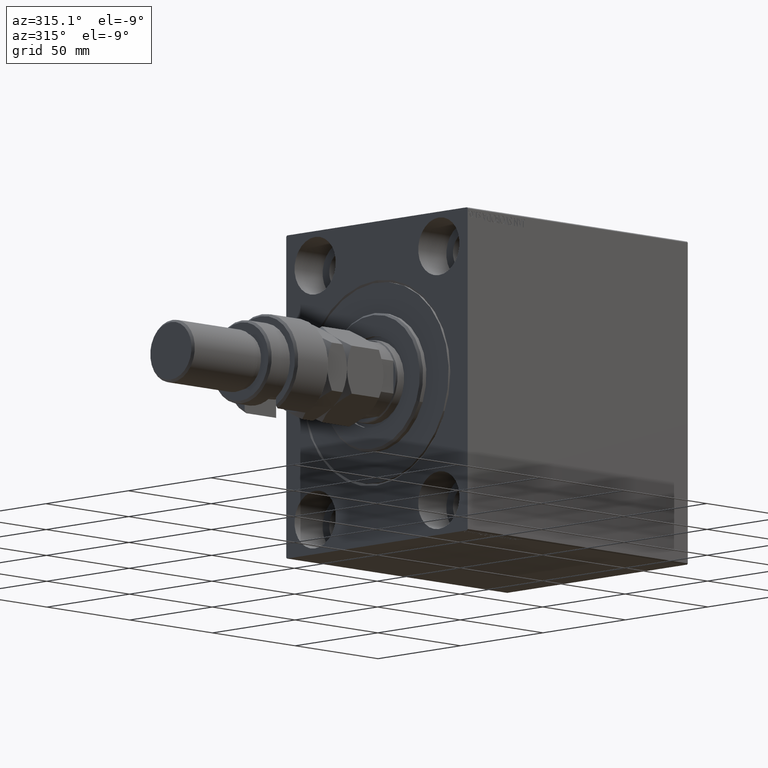
[diagram: clean part render]
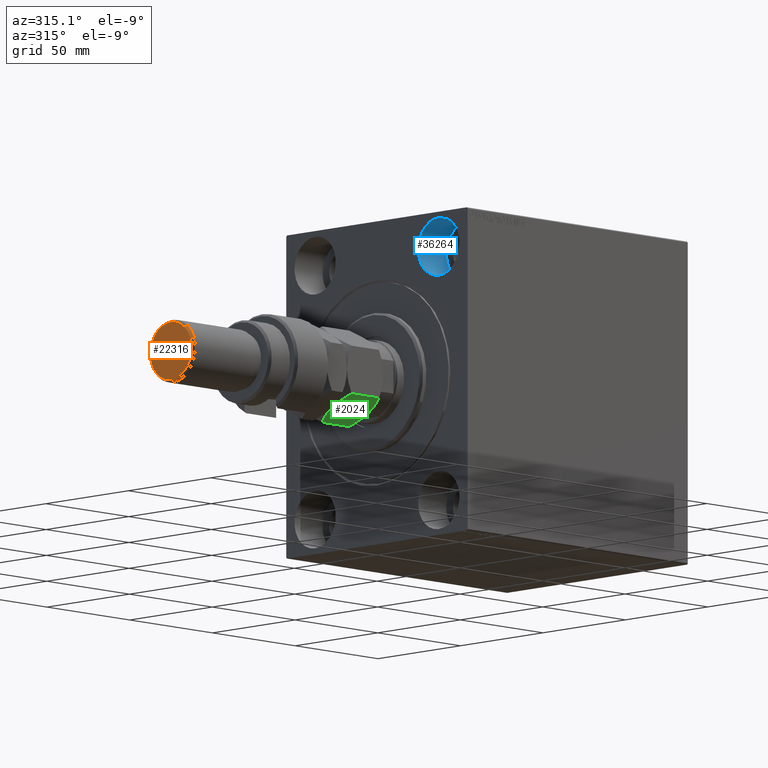
[diagram: same view with three faces highlighted in distinct colors, each labeled with its STEP entity id]
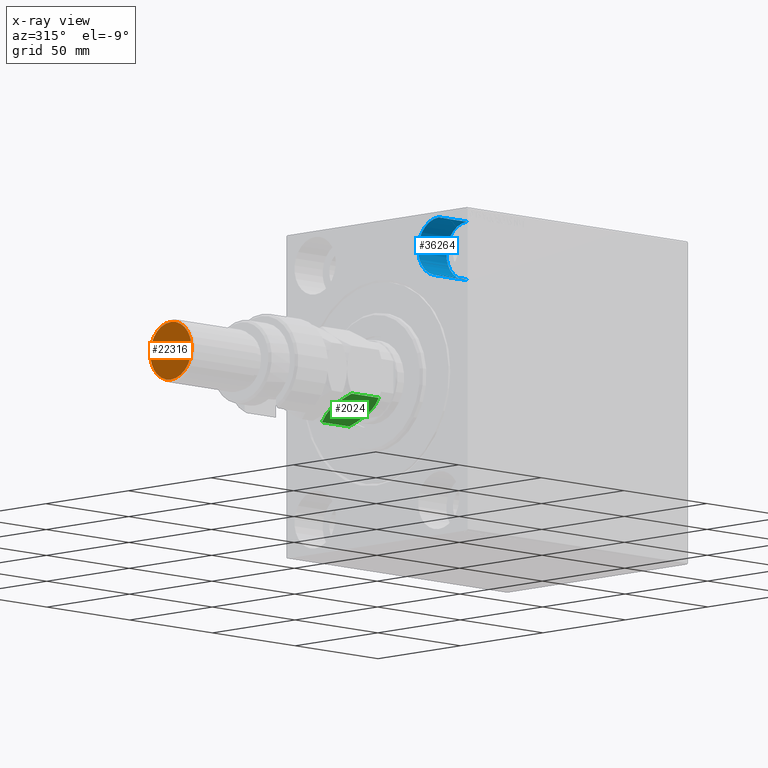
[diagram: x-ray of the same camera — body ghosted, the three highlighted faces saturated]
A machine part, auxiliary view with three faces highlighted in distinct colors.
The next image is the same camera in x-ray (body ghosted, the three faces saturated) — at least one of them is partly hidden behind the body in this view.
Their STEP definitions:

[orange] entity #22316 — the highlighted planar face has unit normal (-1, 0, 0).
#771 = CIRCLE ( 'NONE', #34667, 12.50000000000000888 ) ;
#2538 = ORIENTED_EDGE ( 'NONE', *, *, #16748, .T. ) ;
#3353 = DIRECTION ( 'NONE',  ( 0.000000000000000000, 0.000000000000000000, 1.000000000000000000 ) ) ;
#5017 = ORIENTED_EDGE ( 'NONE', *, *, #20557, .T. ) ;
#5418 = VERTEX_POINT ( 'NONE', #38626 ) ;
#6178 = DIRECTION ( 'NONE',  ( 1.000000000000000000, 0.000000000000000000, -0.000000000000000000 ) ) ;
#6410 = DIRECTION ( 'NONE',  ( 0.000000000000000000, 0.000000000000000000, 1.000000000000000000 ) ) ;
#7681 = EDGE_LOOP ( 'NONE', ( #2538, #5017 ) ) ;
#9709 = FACE_OUTER_BOUND ( 'NONE', #7681, .T. ) ;
#11425 = CARTESIAN_POINT ( 'NONE',  ( 0.000000000000000000, 0.000000000000000000, 74.00000000000001421 ) ) ;
#13966 = CARTESIAN_POINT ( 'NONE',  ( 12.50000000000000888, 1.592040838891559884E-15, 74.00000000000001421 ) ) ;
#14268 = DIRECTION ( 'NONE',  ( 1.000000000000000000, 0.000000000000000000, 0.000000000000000000 ) ) ;
#16748 = EDGE_CURVE ( 'NONE', #5418, #39829, #27752, .T. ) ;
#20557 = EDGE_CURVE ( 'NONE', #39829, #5418, #771, .T. ) ;
#21072 = AXIS2_PLACEMENT_3D ( 'NONE', #38260, #6410, #6178 ) ;
#22316 = ADVANCED_FACE ( 'NONE', ( #9709 ), #35426, .T. ) ;
#25806 = DIRECTION ( 'NONE',  ( 0.000000000000000000, 0.000000000000000000, 1.000000000000000000 ) ) ;
#27752 = CIRCLE ( 'NONE', #35311, 12.50000000000000888 ) ;
#31432 = CARTESIAN_POINT ( 'NONE',  ( 0.000000000000000000, 0.000000000000000000, 74.00000000000001421 ) ) ;
#31904 = DIRECTION ( 'NONE',  ( 1.000000000000000000, 0.000000000000000000, 0.000000000000000000 ) ) ;
#34667 = AXIS2_PLACEMENT_3D ( 'NONE', #31432, #3353, #31904 ) ;
#35311 = AXIS2_PLACEMENT_3D ( 'NONE', #11425, #25806, #14268 ) ;
#35426 = PLANE ( 'NONE',  #21072 ) ;
#38260 = CARTESIAN_POINT ( 'NONE',  ( 0.000000000000000000, 0.000000000000000000, 74.00000000000001421 ) ) ;
#38626 = CARTESIAN_POINT ( 'NONE',  ( -12.50000000000000888, 0.000000000000000000, 74.00000000000001421 ) ) ;
#39829 = VERTEX_POINT ( 'NONE', #13966 ) ;

[blue] entity #36264 — the highlighted cylindrical surface (edge-blend (fillet) strip) has radius 12.5 mm, axis along (-1, -0, -0).
#1745 = CYLINDRICAL_SURFACE ( 'NONE', #26704, 12.49999999999999645 ) ;
#2172 = VECTOR ( 'NONE', #11406, 1000.000000000000000 ) ;
#4827 = AXIS2_PLACEMENT_3D ( 'NONE', #32736, #46473, #28962 ) ;
#5284 = FACE_OUTER_BOUND ( 'NONE', #41130, .T. ) ;
#5513 = CARTESIAN_POINT ( 'NONE',  ( 17.00000000000000000, -37.50000000000000711, 55.00000000000000711 ) ) ;
#8585 = DIRECTION ( 'NONE',  ( 0.000000000000000000, 0.000000000000000000, 1.000000000000000000 ) ) ;
#8657 = ORIENTED_EDGE ( 'NONE', *, *, #16472, .F. ) ;
#9237 = CARTESIAN_POINT ( 'NONE',  ( 17.00000000000000000, -37.50000000000000711, 67.50000000000000000 ) ) ;
#10328 = VERTEX_POINT ( 'NONE', #13390 ) ;
#11406 = DIRECTION ( 'NONE',  ( -1.000000000000000000, -0.000000000000000000, -0.000000000000000000 ) ) ;
#12351 = DIRECTION ( 'NONE',  ( -1.000000000000000000, -0.000000000000000000, -0.000000000000000000 ) ) ;
#13390 = CARTESIAN_POINT ( 'NONE',  ( 0.000000000000000000, -37.50000000000000711, 42.50000000000000711 ) ) ;
#13879 = AXIS2_PLACEMENT_3D ( 'NONE', #43090, #22290, #17818 ) ;
#14246 = LINE ( 'NONE', #36422, #2172 ) ;
#16210 = VECTOR ( 'NONE', #21521, 1000.000000000000000 ) ;
#16472 = EDGE_CURVE ( 'NONE', #32659, #10328, #14246, .T. ) ;
#17818 = DIRECTION ( 'NONE',  ( 0.000000000000000000, 0.000000000000000000, 1.000000000000000000 ) ) ;
#21521 = DIRECTION ( 'NONE',  ( -1.000000000000000000, -0.000000000000000000, -0.000000000000000000 ) ) ;
#22290 = DIRECTION ( 'NONE',  ( -1.000000000000000000, 0.000000000000000000, 0.000000000000000000 ) ) ;
#25184 = ORIENTED_EDGE ( 'NONE', *, *, #36101, .F. ) ;
#25276 = LINE ( 'NONE', #36151, #16210 ) ;
#26704 = AXIS2_PLACEMENT_3D ( 'NONE', #5513, #12351, #8585 ) ;
#28962 = DIRECTION ( 'NONE',  ( 0.000000000000000000, 0.000000000000000000, 1.000000000000000000 ) ) ;
#32659 = VERTEX_POINT ( 'NONE', #38590 ) ;
#32736 = CARTESIAN_POINT ( 'NONE',  ( 0.000000000000000000, -37.50000000000000711, 55.00000000000000711 ) ) ;
#32874 = VERTEX_POINT ( 'NONE', #43427 ) ;
#36101 = EDGE_CURVE ( 'NONE', #43835, #32659, #37255, .T. ) ;
#36151 = CARTESIAN_POINT ( 'NONE',  ( 17.00000000000000000, -37.50000000000000711, 67.50000000000000000 ) ) ;
#36264 = ADVANCED_FACE ( 'NONE', ( #5284 ), #1745, .F. ) ;
#36422 = CARTESIAN_POINT ( 'NONE',  ( 17.00000000000000000, -37.50000000000000711, 42.50000000000000711 ) ) ;
#37255 = CIRCLE ( 'NONE', #13879, 12.49999999999999645 ) ;
#37904 = ORIENTED_EDGE ( 'NONE', *, *, #38038, .T. ) ;
#38038 = EDGE_CURVE ( 'NONE', #32874, #10328, #39481, .T. ) ;
#38590 = CARTESIAN_POINT ( 'NONE',  ( 17.00000000000000000, -37.50000000000000711, 42.50000000000000711 ) ) ;
#39481 = CIRCLE ( 'NONE', #4827, 12.49999999999999645 ) ;
#41130 = EDGE_LOOP ( 'NONE', ( #8657, #25184, #45146, #37904 ) ) ;
#41737 = EDGE_CURVE ( 'NONE', #43835, #32874, #25276, .T. ) ;
#43090 = CARTESIAN_POINT ( 'NONE',  ( 17.00000000000000000, -37.50000000000000711, 55.00000000000000711 ) ) ;
#43427 = CARTESIAN_POINT ( 'NONE',  ( 0.000000000000000000, -37.50000000000000711, 67.50000000000000000 ) ) ;
#43835 = VERTEX_POINT ( 'NONE', #9237 ) ;
#45146 = ORIENTED_EDGE ( 'NONE', *, *, #41737, .T. ) ;
#46473 = DIRECTION ( 'NONE',  ( -1.000000000000000000, 0.000000000000000000, 0.000000000000000000 ) ) ;

[green] entity #2024 — the highlighted planar face has unit normal (0, 0.5, 0.866).
#115 = CARTESIAN_POINT ( 'NONE',  ( -8.999999999999994671, -15.58845726811989252, 22.00000000000000000 ) ) ;
#159 = CARTESIAN_POINT ( 'NONE',  ( -7.415748492146452264, -16.50312530264320898, 0.08694689011815484592 ) ) ;
#849 = EDGE_CURVE ( 'NONE', #13944, #23469, #23162, .T. ) ;
#1999 = VECTOR ( 'NONE', #37092, 1000.000000000000000 ) ;
#2024 = ADVANCED_FACE ( 'NONE', ( #2442 ), #34514, .F. ) ;
#2278 = EDGE_CURVE ( 'NONE', #37850, #31169, #19856, .T. ) ;
#2442 = FACE_OUTER_BOUND ( 'NONE', #22080, .T. ) ;
#3409 = CARTESIAN_POINT ( 'NONE',  ( -16.58866960374795241, -11.20713682960488633, 20.03022229336509596 ) ) ;
#3739 = B_SPLINE_CURVE_WITH_KNOTS ( 'NONE', 3,
 ( #32715, #25624, #11711, #18326, #40525, #36496 ),
 .UNSPECIFIED., .F., .F.,
 ( 4, 2, 4 ),
 ( 0.01077282027732746374, 0.01612137750481872772, 0.02146993473230999344 ),
 .UNSPECIFIED. ) ;
#4538 = CARTESIAN_POINT ( 'NONE',  ( -8.673617379884035472E-16, -20.78460969082652454, 22.00000000000000000 ) ) ;
#5487 = B_SPLINE_CURVE_WITH_KNOTS ( 'NONE', 3,
 ( #7925, #43124, #14309, #44062, #11699, #10990, #159, #25610, #26082, #40037 ),
 .UNSPECIFIED., .F., .F.,
 ( 4, 2, 2, 2, 4 ),
 ( 2.544307986815391393E-07, 0.005386537354063073400, 0.008079678815695269870, 0.009426249546511366803, 0.01077282027732746374 ),
 .UNSPECIFIED. ) ;
#5523 = EDGE_CURVE ( 'NONE', #31169, #14512, #5487, .T. ) ;
#7925 = CARTESIAN_POINT ( 'NONE',  ( -5.711424626294094742E-16, -20.78460969082652454, 2.784609690826514772 ) ) ;
#8591 = CARTESIAN_POINT ( 'NONE',  ( -1.409696000463988463, -19.97072132548310108, 20.02927867451694510 ) ) ;
#9977 = DIRECTION ( 'NONE',  ( 0.4999999999999998335, 0.8660254037844387076, -0.000000000000000000 ) ) ;
#10059 = ORIENTED_EDGE ( 'NONE', *, *, #2278, .F. ) ;
#10774 = VECTOR ( 'NONE', #11124, 1000.000000000000000 ) ;
#10990 = CARTESIAN_POINT ( 'NONE',  ( -7.023280245922045140, -16.72971695024925509, 0.1387225990985768986 ) ) ;
#11124 = DIRECTION ( 'NONE',  ( -0.000000000000000000, -0.000000000000000000, -1.000000000000000000 ) ) ;
#11699 = CARTESIAN_POINT ( 'NONE',  ( -5.858009779716799592, -17.40248616759157230, 0.3405631022552689235 ) ) ;
#11711 = CARTESIAN_POINT ( 'NONE',  ( -12.10430252359947723, -13.79618737047370303, 0.2763959071215840724 ) ) ;
#12095 = CARTESIAN_POINT ( 'NONE',  ( -18.00000000000000000, -10.39230484541326582, 19.21539030917347901 ) ) ;
#13944 = VERTEX_POINT ( 'NONE', #12095 ) ;
#14309 = CARTESIAN_POINT ( 'NONE',  ( -2.854601888853810721, -19.13650452186755757, 1.277383077889868046 ) ) ;
#14512 = VERTEX_POINT ( 'NONE', #31706 ) ;
#16373 = CARTESIAN_POINT ( 'NONE',  ( -2.860715810337963294, -19.13297464765287614, 20.72742529849575277 ) ) ;
#16604 = CARTESIAN_POINT ( 'NONE',  ( -6.333703707815436362E-16, -20.78460969082652454, 19.21539030917348256 ) ) ;
#17080 = AXIS2_PLACEMENT_3D ( 'NONE', #42330, #9977, #27436 ) ;
#17357 = CARTESIAN_POINT ( 'NONE',  ( -18.00000000000000000, -10.39230484541326582, 22.00000000000000000 ) ) ;
#17810 = CARTESIAN_POINT ( 'NONE',  ( -18.00000000000000000, -10.39230484541326582, 19.21539030917347901 ) ) ;
#18326 = CARTESIAN_POINT ( 'NONE',  ( -15.13928418966203004, -12.04393988858690712, 1.272574701504241901 ) ) ;
#19220 = CARTESIAN_POINT ( 'NONE',  ( -5.895697476400521886, -17.38072716576608912, 21.72360409287842131 ) ) ;
#19856 = LINE ( 'NONE', #4538, #1999 ) ;
#19948 = ORIENTED_EDGE ( 'NONE', *, *, #32531, .F. ) ;
#21814 = CARTESIAN_POINT ( 'NONE',  ( -10.58425150785354241, -14.67378923359658316, 21.91305310988184374 ) ) ;
#22080 = EDGE_LOOP ( 'NONE', ( #43267, #10059, #42970, #26624, #40373, #19948 ) ) ;
#22282 = CARTESIAN_POINT ( 'NONE',  ( -12.14199022028319774, -13.77442836864821984, 21.65943689774472602 ) ) ;
#23162 = B_SPLINE_CURVE_WITH_KNOTS ( 'NONE', 3,
 ( #17810, #3409, #43081, #43307, #22282, #39994, #21814, #25100, #46626, #115 ),
 .UNSPECIFIED., .F., .F.,
 ( 4, 2, 2, 2, 4 ),
 ( 2.544307986796311447E-07, 0.005386537354063076002, 0.008079678815695275074, 0.009426249546511373742, 0.01077282027732747068 ),
 .UNSPECIFIED. ) ;
#23469 = VERTEX_POINT ( 'NONE', #42769 ) ;
#25100 = CARTESIAN_POINT ( 'NONE',  ( -9.790461530629873010, -15.13208409062669624, 21.98266714352591222 ) ) ;
#25610 = CARTESIAN_POINT ( 'NONE',  ( -8.209538469370123437, -16.04483044561309768, 0.01733285647409000055 ) ) ;
#25624 = CARTESIAN_POINT ( 'NONE',  ( -10.56546083169953576, -14.68463803553235181, 8.233160247311796338E-16 ) ) ;
#26060 = VERTEX_POINT ( 'NONE', #32636 ) ;
#26082 = CARTESIAN_POINT ( 'NONE',  ( -8.605874323383764235, -15.81600583360881807, 9.080193194566099635E-16 ) ) ;
#26517 = CARTESIAN_POINT ( 'NONE',  ( -8.999999999999994671, -15.58845726811989252, 22.00000000000000000 ) ) ;
#26624 = ORIENTED_EDGE ( 'NONE', *, *, #849, .F. ) ;
#27436 = DIRECTION ( 'NONE',  ( -0.8660254037844387076, 0.4999999999999998335, 0.000000000000000000 ) ) ;
#30079 = B_SPLINE_CURVE_WITH_KNOTS ( 'NONE', 3,
 ( #26517, #30288, #19220, #16373, #8591, #16604 ),
 .UNSPECIFIED., .F., .F.,
 ( 4, 2, 4 ),
 ( 0.01077282027732747068, 0.01612137750481873466, 0.02146993473230999691 ),
 .UNSPECIFIED. ) ;
#30288 = CARTESIAN_POINT ( 'NONE',  ( -7.434539168300457135, -16.49227650070744033, 22.00000000000000000 ) ) ;
#31169 = VERTEX_POINT ( 'NONE', #33751 ) ;
#31706 = CARTESIAN_POINT ( 'NONE',  ( -8.999999999999996447, -15.58845726811989607, 0.000000000000000000 ) ) ;
#32531 = EDGE_CURVE ( 'NONE', #14512, #26060, #3739, .T. ) ;
#32634 = EDGE_CURVE ( 'NONE', #13944, #26060, #42148, .T. ) ;
#32636 = CARTESIAN_POINT ( 'NONE',  ( -18.00000000000000000, -10.39230484541326582, 2.784609690826517436 ) ) ;
#32715 = CARTESIAN_POINT ( 'NONE',  ( -8.999999999999996447, -15.58845726811989607, 0.000000000000000000 ) ) ;
#33751 = CARTESIAN_POINT ( 'NONE',  ( -5.711424626294094742E-16, -20.78460969082652454, 2.784609690826514772 ) ) ;
#34514 = PLANE ( 'NONE',  #17080 ) ;
#34876 = CARTESIAN_POINT ( 'NONE',  ( -6.333703707815436362E-16, -20.78460969082652454, 19.21539030917348256 ) ) ;
#36496 = CARTESIAN_POINT ( 'NONE',  ( -18.00000000000000000, -10.39230484541326582, 2.784609690826517436 ) ) ;
#37092 = DIRECTION ( 'NONE',  ( -0.000000000000000000, -0.000000000000000000, -1.000000000000000000 ) ) ;
#37850 = VERTEX_POINT ( 'NONE', #34876 ) ;
#39994 = CARTESIAN_POINT ( 'NONE',  ( -10.97671975407795131, -14.44719758599054060, 21.86127740090141458 ) ) ;
#40037 = CARTESIAN_POINT ( 'NONE',  ( -8.999999999999996447, -15.58845726811989607, 0.000000000000000000 ) ) ;
#40373 = ORIENTED_EDGE ( 'NONE', *, *, #32634, .T. ) ;
#40525 = CARTESIAN_POINT ( 'NONE',  ( -16.59030399953601176, -11.20619321075668928, 1.970721325483051567 ) ) ;
#42148 = LINE ( 'NONE', #17357, #10774 ) ;
#42330 = CARTESIAN_POINT ( 'NONE',  ( -18.00000000000000000, -10.39230484541326582, 22.00000000000000000 ) ) ;
#42559 = EDGE_CURVE ( 'NONE', #23469, #37850, #30079, .T. ) ;
#42769 = CARTESIAN_POINT ( 'NONE',  ( -8.999999999999994671, -15.58845726811989252, 22.00000000000000000 ) ) ;
#42970 = ORIENTED_EDGE ( 'NONE', *, *, #42559, .F. ) ;
#43081 = CARTESIAN_POINT ( 'NONE',  ( -15.14539811114618573, -12.04041001437222569, 20.72261692211012729 ) ) ;
#43124 = CARTESIAN_POINT ( 'NONE',  ( -1.411330396252045816, -19.96977770663490759, 1.969777706634897152 ) ) ;
#43267 = ORIENTED_EDGE ( 'NONE', *, *, #5523, .F. ) ;
#43307 = CARTESIAN_POINT ( 'NONE',  ( -12.90267270303527525, -13.33524813246347129, 21.46291444417098049 ) ) ;
#44062 = CARTESIAN_POINT ( 'NONE',  ( -5.097327296964719423, -17.84166640377631197, 0.5370855558290080767 ) ) ;
#46626 = CARTESIAN_POINT ( 'NONE',  ( -9.394125676616230436, -15.36090870263097230, 22.00000000000000000 ) ) ;